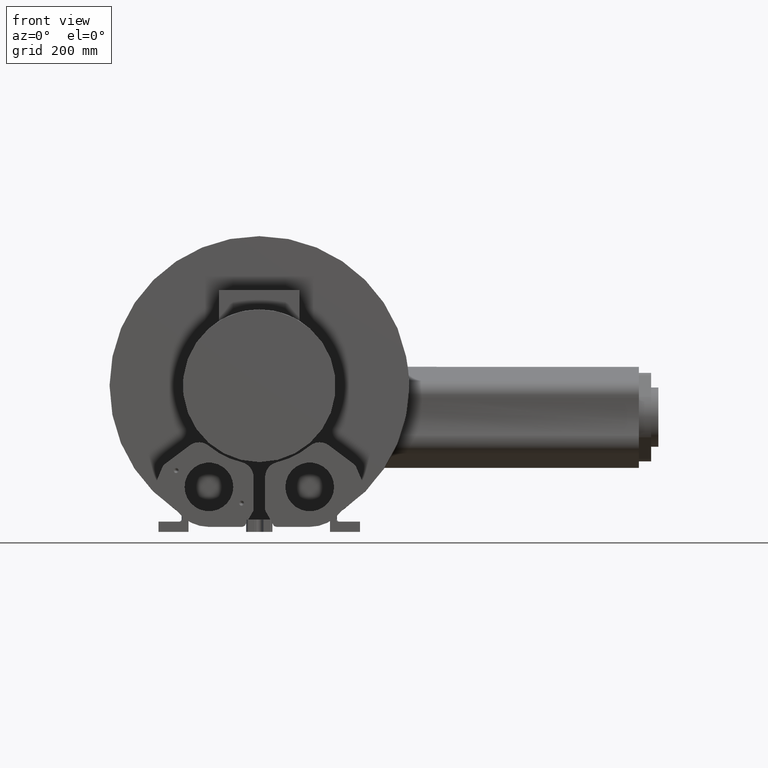
[diagram: clean part render]
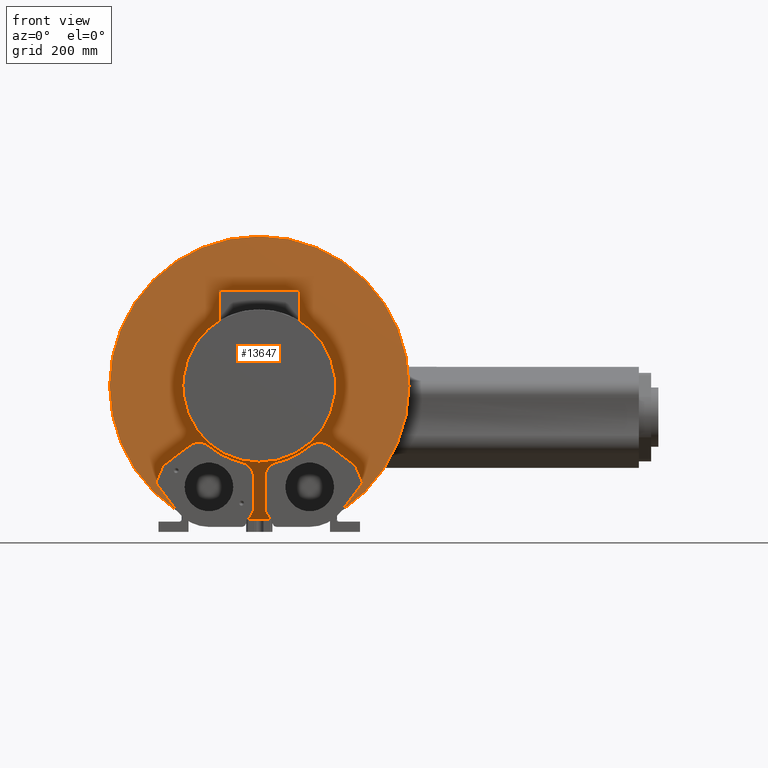
[diagram: same view with one face highlighted and labeled with its STEP entity id]
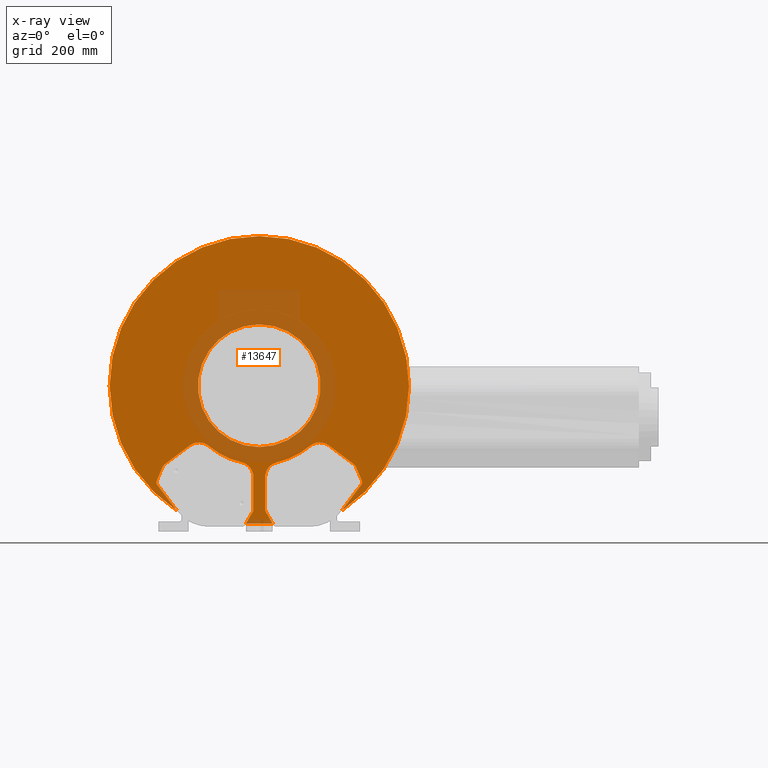
[diagram: x-ray of the same camera — body ghosted, the highlighted face saturated]
A machine part, front view. The second image highlights one B-rep face of the part: STEP entity #13647.
The next image is the same camera in x-ray: the body ghosted, the highlighted face saturated — about 19% of this face is hidden behind the body in this view.
In plain terms, the highlighted planar face has unit normal (-0, -1, 0).
Its self-contained STEP definition (entity closure, byte-faithful):
#102=CIRCLE('',#14395,307.5);
#131=CIRCLE('',#14449,10.);
#132=CIRCLE('',#14452,11.1606192577638);
#133=CIRCLE('',#14455,31.6951599892418);
#134=CIRCLE('',#14456,161.294818434374);
#135=CIRCLE('',#14458,31.6951746290562);
#136=CIRCLE('',#14461,9.99999418304112);
#137=CIRCLE('',#14466,10.);
#138=CIRCLE('',#14467,11.1606192577638);
#139=CIRCLE('',#14468,31.6951599892418);
#140=CIRCLE('',#14469,161.294818434375);
#141=CIRCLE('',#14470,31.6951746290562);
#142=CIRCLE('',#14471,9.99999418304112);
#143=CIRCLE('',#14472,126.);
#313=FACE_BOUND('',#2058,.T.);
#1284=FACE_OUTER_BOUND('',#2057,.T.);
#2057=EDGE_LOOP('',(#9393,#9394,#9395,#9396,#9397,#9398,#9399,#9400,#9401,
#9402,#9403,#9404,#9405,#9406,#9407,#9408,#9409,#9410,#9411,#9412,#9413,
#9414,#9415,#9416));
#2058=EDGE_LOOP('',(#9417));
#2962=LINE('',#19031,#4231);
#2977=LINE('',#19085,#4246);
#2980=LINE('',#19093,#4249);
#2983=LINE('',#19101,#4252);
#2988=LINE('',#19122,#4257);
#2991=LINE('',#19129,#4260);
#2994=LINE('',#19136,#4263);
#2995=LINE('',#19140,#4264);
#2996=LINE('',#19144,#4265);
#2997=LINE('',#19152,#4266);
#2998=LINE('',#19154,#4267);
#4231=VECTOR('',#15637,28.2922171149252);
#4246=VECTOR('',#15686,68.7536166424249);
#4249=VECTOR('',#15695,28.5266885130192);
#4252=VECTOR('',#15704,65.4747307687757);
#4257=VECTOR('',#15721,65.5450598472738);
#4260=VECTOR('',#15730,28.2922171149252);
#4263=VECTOR('',#15739,68.7536166424249);
#4264=VECTOR('',#15742,28.5266885130192);
#4265=VECTOR('',#15745,65.4747307687757);
#4266=VECTOR('',#15752,65.5450598472738);
#4267=VECTOR('',#15755,54.5674555918563);
#5480=VERTEX_POINT('',#18891);
#5481=VERTEX_POINT('',#18893);
#5524=VERTEX_POINT('',#19028);
#5525=VERTEX_POINT('',#19030);
#5541=VERTEX_POINT('',#19066);
#5547=VERTEX_POINT('',#19084);
#5548=VERTEX_POINT('',#19088);
#5549=VERTEX_POINT('',#19092);
#5550=VERTEX_POINT('',#19096);
#5551=VERTEX_POINT('',#19100);
#5552=VERTEX_POINT('',#19104);
#5553=VERTEX_POINT('',#19113);
#5554=VERTEX_POINT('',#19117);
#5555=VERTEX_POINT('',#19121);
#5556=VERTEX_POINT('',#19125);
#5557=VERTEX_POINT('',#19135);
#5558=VERTEX_POINT('',#19137);
#5559=VERTEX_POINT('',#19139);
#5560=VERTEX_POINT('',#19141);
#5561=VERTEX_POINT('',#19143);
#5562=VERTEX_POINT('',#19145);
#5563=VERTEX_POINT('',#19147);
#5564=VERTEX_POINT('',#19149);
#5565=VERTEX_POINT('',#19151);
#5566=VERTEX_POINT('',#19155);
#6897=EDGE_CURVE('',#5481,#5480,#102,.T.);
#6957=EDGE_CURVE('',#5525,#5524,#2962,.T.);
#6984=EDGE_CURVE('',#5547,#5481,#2977,.T.);
#6986=EDGE_CURVE('',#5548,#5547,#131,.T.);
#6988=EDGE_CURVE('',#5549,#5548,#2980,.T.);
#6990=EDGE_CURVE('',#5550,#5549,#132,.T.);
#6992=EDGE_CURVE('',#5551,#5550,#2983,.T.);
#6994=EDGE_CURVE('',#5552,#5551,#133,.T.);
#6996=EDGE_CURVE('',#5553,#5552,#134,.T.);
#6998=EDGE_CURVE('',#5554,#5553,#135,.T.);
#7000=EDGE_CURVE('',#5555,#5554,#2988,.T.);
#7002=EDGE_CURVE('',#5556,#5555,#136,.T.);
#7004=EDGE_CURVE('',#5541,#5556,#2991,.T.);
#7007=EDGE_CURVE('',#5480,#5557,#2994,.T.);
#7008=EDGE_CURVE('',#5557,#5558,#137,.T.);
#7009=EDGE_CURVE('',#5558,#5559,#2995,.T.);
#7010=EDGE_CURVE('',#5559,#5560,#138,.T.);
#7011=EDGE_CURVE('',#5560,#5561,#2996,.T.);
#7012=EDGE_CURVE('',#5561,#5562,#139,.T.);
#7013=EDGE_CURVE('',#5562,#5563,#140,.T.);
#7014=EDGE_CURVE('',#5563,#5564,#141,.T.);
#7015=EDGE_CURVE('',#5564,#5565,#2997,.T.);
#7016=EDGE_CURVE('',#5565,#5525,#142,.T.);
#7017=EDGE_CURVE('',#5524,#5541,#2998,.T.);
#7018=EDGE_CURVE('',#5566,#5566,#143,.T.);
#9393=ORIENTED_EDGE('',*,*,#7004,.T.);
#9394=ORIENTED_EDGE('',*,*,#7002,.T.);
#9395=ORIENTED_EDGE('',*,*,#7000,.T.);
#9396=ORIENTED_EDGE('',*,*,#6998,.T.);
#9397=ORIENTED_EDGE('',*,*,#6996,.T.);
#9398=ORIENTED_EDGE('',*,*,#6994,.T.);
#9399=ORIENTED_EDGE('',*,*,#6992,.T.);
#9400=ORIENTED_EDGE('',*,*,#6990,.T.);
#9401=ORIENTED_EDGE('',*,*,#6988,.T.);
#9402=ORIENTED_EDGE('',*,*,#6986,.T.);
#9403=ORIENTED_EDGE('',*,*,#6984,.T.);
#9404=ORIENTED_EDGE('',*,*,#6897,.T.);
#9405=ORIENTED_EDGE('',*,*,#7007,.T.);
#9406=ORIENTED_EDGE('',*,*,#7008,.T.);
#9407=ORIENTED_EDGE('',*,*,#7009,.T.);
#9408=ORIENTED_EDGE('',*,*,#7010,.T.);
#9409=ORIENTED_EDGE('',*,*,#7011,.T.);
#9410=ORIENTED_EDGE('',*,*,#7012,.T.);
#9411=ORIENTED_EDGE('',*,*,#7013,.T.);
#9412=ORIENTED_EDGE('',*,*,#7014,.T.);
#9413=ORIENTED_EDGE('',*,*,#7015,.T.);
#9414=ORIENTED_EDGE('',*,*,#7016,.T.);
#9415=ORIENTED_EDGE('',*,*,#6957,.T.);
#9416=ORIENTED_EDGE('',*,*,#7017,.T.);
#9417=ORIENTED_EDGE('',*,*,#7018,.F.);
#12411=PLANE('',#14465);
#13647=ADVANCED_FACE('',(#1284,#313),#12411,.T.);
#14395=AXIS2_PLACEMENT_3D('',#18894,#15528,#15529);
#14449=AXIS2_PLACEMENT_3D('',#19089,#15690,#15691);
#14452=AXIS2_PLACEMENT_3D('',#19097,#15699,#15700);
#14455=AXIS2_PLACEMENT_3D('',#19105,#15708,#15709);
#14456=AXIS2_PLACEMENT_3D('',#19114,#15711,#15712);
#14458=AXIS2_PLACEMENT_3D('',#19118,#15716,#15717);
#14461=AXIS2_PLACEMENT_3D('',#19126,#15725,#15726);
#14465=AXIS2_PLACEMENT_3D('',#19134,#15737,#15738);
#14466=AXIS2_PLACEMENT_3D('',#19138,#15740,#15741);
#14467=AXIS2_PLACEMENT_3D('',#19142,#15743,#15744);
#14468=AXIS2_PLACEMENT_3D('',#19146,#15746,#15747);
#14469=AXIS2_PLACEMENT_3D('',#19148,#15748,#15749);
#14470=AXIS2_PLACEMENT_3D('',#19150,#15750,#15751);
#14471=AXIS2_PLACEMENT_3D('',#19153,#15753,#15754);
#14472=AXIS2_PLACEMENT_3D('',#19156,#15756,#15757);
#15528=DIRECTION('center_axis',(-2.7755575615627E-17,-1.,5.64283143708145E-15));
#15529=DIRECTION('ref_axis',(1.54760881573065E-15,5.64283143708145E-15,
1.));
#15637=DIRECTION('',(-0.50001014504188,-4.8729242525166E-15,-0.866019546462549));
#15686=DIRECTION('',(-0.60180566751421,-4.48990188151095E-15,-0.798642559940163));
#15690=DIRECTION('center_axis',(2.7755575615627E-17,1.,-5.64283143708145E-15));
#15691=DIRECTION('ref_axis',(0.920500276158895,2.17934172834107E-15,0.390741911741494));
#15695=DIRECTION('',(0.390741911741493,-5.20507316282911E-15,-0.920500276158896));
#15699=DIRECTION('center_axis',(2.7755575615627E-17,1.,-5.64283143708145E-15));
#15700=DIRECTION('ref_axis',(0.60180566747392,4.48990188168338E-15,0.798642559970522));
#15704=DIRECTION('',(0.798642559970522,-3.41805472339874E-15,-0.60180566747392));
#15708=DIRECTION('center_axis',(2.7755575615627E-17,1.,-5.64283143708145E-15));
#15709=DIRECTION('ref_axis',(-0.642484418379761,4.34192719377504E-15,0.766298748621724));
#15711=DIRECTION('center_axis',(-2.7755575615627E-17,-1.,5.64283143708145E-15));
#15712=DIRECTION('ref_axis',(-0.974275607863971,-1.24462578961461E-15,-0.225359801032239));
#15716=DIRECTION('center_axis',(2.7755575615627E-17,1.,-5.64283143708145E-15));
#15717=DIRECTION('ref_axis',(-0.99999999993562,2.76915450913949E-17,-1.13472328846223E-5));
#15721=DIRECTION('',(-1.17145197370745E-5,5.6428317618375E-15,0.999999999931385));
#15725=DIRECTION('center_axis',(2.7755575615627E-17,1.,-5.64283143708145E-15));
#15726=DIRECTION('ref_axis',(-0.866019546462551,-2.7974360942955E-15,-0.500010145041876));
#15730=DIRECTION('',(-0.500010145041877,4.90068039129519E-15,0.86601954646255));
#15737=DIRECTION('center_axis',(-2.7755575615627E-17,-1.,5.64283143708145E-15));
#15738=DIRECTION('ref_axis',(1.,0.,-1.4210854715202E-15));
#15739=DIRECTION('',(-0.601805667514207,4.52330880693217E-15,0.798642559940165));
#15740=DIRECTION('center_axis',(2.7755575615627E-17,1.,-5.64283143708145E-15));
#15741=DIRECTION('ref_axis',(-0.920500276158894,2.23043975837936E-15,0.390741911741497));
#15742=DIRECTION('',(0.390741911741496,5.18338262947403E-15,0.920500276158895));
#15743=DIRECTION('center_axis',(2.7755575615627E-17,1.,-5.64283143708145E-15));
#15744=DIRECTION('ref_axis',(-0.601805667473918,4.52330880710236E-15,0.798642559970524));
#15745=DIRECTION('',(0.798642559970524,3.37372115547249E-15,0.601805667473918));
#15746=DIRECTION('center_axis',(2.7755575615627E-17,1.,-5.64283143708145E-15));
#15747=DIRECTION('ref_axis',(0.642484418379764,4.30626214406262E-15,0.766298748621722));
#15748=DIRECTION('center_axis',(-2.7755575615627E-17,-1.,5.64283143708145E-15));
#15749=DIRECTION('ref_axis',(0.97427560786397,-1.29870895022368E-15,-0.225359801032242));
#15750=DIRECTION('center_axis',(2.7755575615627E-17,1.,-5.64283143708145E-15));
#15751=DIRECTION('ref_axis',(0.99999999993562,-2.78196061363028E-17,-1.13472328877175E-5));
#15752=DIRECTION('',(-1.17145197401697E-5,-5.64283111155103E-15,-0.999999999931385));
#15753=DIRECTION('center_axis',(2.7755575615627E-17,1.,-5.64283143708145E-15));
#15754=DIRECTION('ref_axis',(0.866019546462549,-2.84550983630842E-15,-0.500010145041879));
#15755=DIRECTION('',(1.,-2.77555756156357E-17,-1.54760881573065E-15));
#15756=DIRECTION('center_axis',(-2.7755575615627E-17,-1.,5.64283143708145E-15));
#15757=DIRECTION('ref_axis',(1.54760881573065E-15,5.64283143708145E-15,
1.));
#18891=CARTESIAN_POINT('',(-197.376897919205,-84.9843427378773,-542.399560298098));
#18893=CARTESIAN_POINT('',(141.724855202003,-84.9843427378773,-542.399560298098));
#18894=CARTESIAN_POINT('Origin',(-27.8260213586008,-84.9843427378758,-285.86739806979));
#19028=CARTESIAN_POINT('',(-55.1097491545294,-84.9843427378774,-568.86739806979));
#19030=CARTESIAN_POINT('',(-40.9633535713393,-84.9843427378773,-544.365785035503));
#19031=CARTESIAN_POINT('',(55.2623313892825,-84.9843427378763,-377.702518551848));
#19066=CARTESIAN_POINT('',(-0.542293562673049,-84.9843427378774,-568.86739806979));
#19084=CARTESIAN_POINT('',(183.101171359513,-84.984342737877,-487.489995897648));
#19085=CARTESIAN_POINT('',(245.446126936604,-84.9843427378765,-404.753428913974));
#19088=CARTESIAN_POINT('',(182.817907236821,-84.9843427378769,-480.42460408677));
#19089=CARTESIAN_POINT('Origin',(173.612904475232,-84.984342737877,-484.332023204185));
#19092=CARTESIAN_POINT('',(171.67133443159,-84.9843427378768,-454.165779432637));
#19093=CARTESIAN_POINT('',(87.1950588335053,-84.9843427378757,-255.158627447475));
#19096=CARTESIAN_POINT('',(167.532220803993,-84.9843427378768,-447.843679855212));
#19097=CARTESIAN_POINT('Origin',(160.815696882153,-84.9843427378768,-456.757025390089));
#19100=CARTESIAN_POINT('',(115.241314209438,-84.9843427378765,-408.440615802234));
#19101=CARTESIAN_POINT('',(-11.9290558048764,-84.984342737876,-312.613204084789));
#19104=CARTESIAN_POINT('',(75.8033408652778,-84.9843427378765,-409.465758077596));
#19105=CARTESIAN_POINT('Origin',(96.1669872964193,-84.9843427378767,-433.753719514717));
#19113=CARTESIAN_POINT('',(8.5233468379217,-84.9843427378767,-443.011309769994));
#19114=CARTESIAN_POINT('Origin',(-27.8260213525202,-84.9843427378758,-285.865702496863));
#19117=CARTESIAN_POINT('',(-16.0290095408066,-84.9843427378769,-473.891504950554));
#19118=CARTESIAN_POINT('Origin',(15.666165086209,-84.9843427378769,-473.891145298026));
#19121=CARTESIAN_POINT('',(-16.0282417119094,-84.9843427378773,-539.436564793331));
#19122=CARTESIAN_POINT('',(-16.0309964942993,-84.9843427378759,-304.27691236117));
#19125=CARTESIAN_POINT('',(-14.6886891458631,-84.9843427378773,-544.365785035503));
#19126=CARTESIAN_POINT('Origin',(-6.02849871883765,-84.9843427378773,-539.365686493622));
#19129=CARTESIAN_POINT('',(-110.914374106484,-84.9843427378763,-377.702518551847));
#19134=CARTESIAN_POINT('Origin',(-27.8260213586004,-84.9843427378746,-69.1173980697902));
#19135=CARTESIAN_POINT('',(-238.753214076716,-84.984342737877,-487.489995897647));
#19136=CARTESIAN_POINT('',(-301.098169653806,-84.9843427378765,-404.753428913973));
#19137=CARTESIAN_POINT('',(-238.469949954023,-84.9843427378769,-480.424604086769));
#19138=CARTESIAN_POINT('Origin',(-229.264947192435,-84.984342737877,-484.332023204184));
#19139=CARTESIAN_POINT('',(-227.323377148792,-84.9843427378768,-454.165779432636));
#19140=CARTESIAN_POINT('',(-142.847101550707,-84.9843427378757,-255.158627447474));
#19141=CARTESIAN_POINT('',(-223.184263521195,-84.9843427378768,-447.843679855211));
#19142=CARTESIAN_POINT('Origin',(-216.467739599355,-84.9843427378768,-456.757025390088));
#19143=CARTESIAN_POINT('',(-170.89335692664,-84.9843427378765,-408.440615802233));
#19144=CARTESIAN_POINT('',(-43.7229869123252,-84.984342737876,-312.613204084788));
#19145=CARTESIAN_POINT('',(-131.45538358248,-84.9843427378765,-409.465758077595));
#19146=CARTESIAN_POINT('Origin',(-151.819030013621,-84.9843427378767,-433.753719514717));
#19147=CARTESIAN_POINT('',(-64.1753895551237,-84.9843427378767,-443.011309769994));
#19148=CARTESIAN_POINT('Origin',(-27.8260213646814,-84.9843427378758,-285.865702496863));
#19149=CARTESIAN_POINT('',(-39.6230331763955,-84.9843427378769,-473.891504950554));
#19150=CARTESIAN_POINT('Origin',(-71.3182078034112,-84.9843427378769,-473.891145298026));
#19151=CARTESIAN_POINT('',(-39.623801005293,-84.9843427378773,-539.43656479333));
#19152=CARTESIAN_POINT('',(-39.6210462229023,-84.9843427378759,-304.27691236117));
#19153=CARTESIAN_POINT('Origin',(-49.6235439983647,-84.9843427378773,-539.365686493622));
#19154=CARTESIAN_POINT('',(-152.826021358601,-84.9843427378774,-568.86739806979));
#19155=CARTESIAN_POINT('',(-27.8260213586006,-84.9843427378751,-159.86739806979));
#19156=CARTESIAN_POINT('Origin',(-27.8260213586008,-84.9843427378758,-285.86739806979));